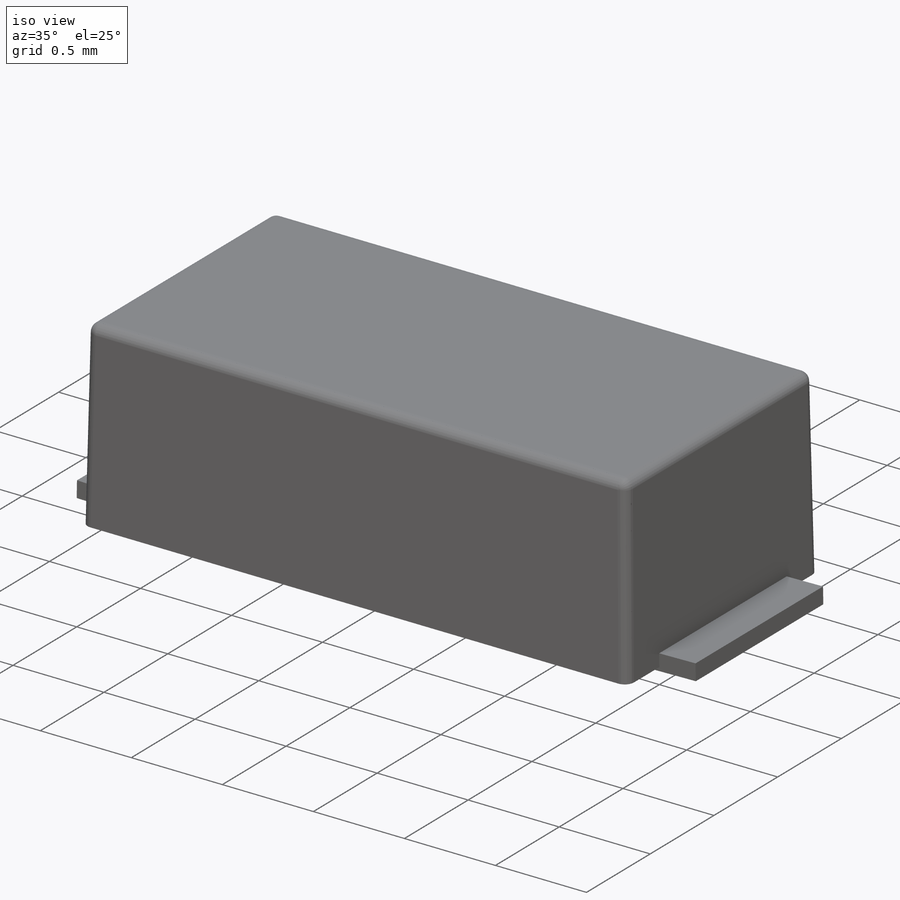
[diagram: iso view]
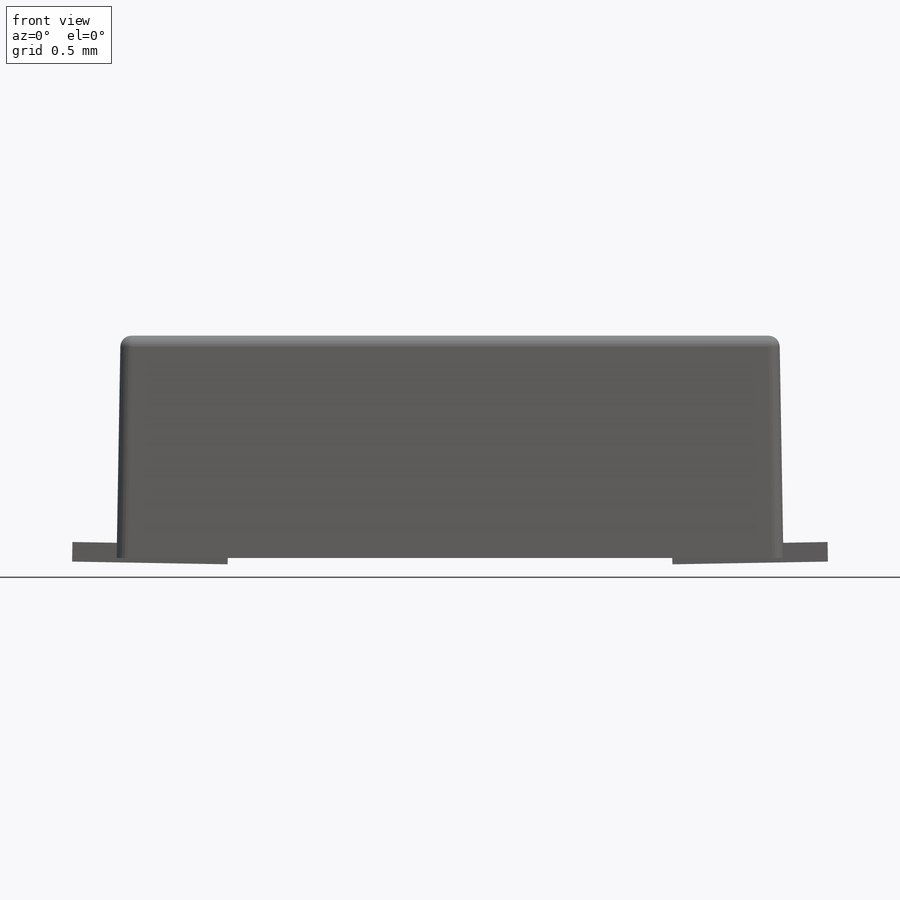
[diagram: front view]
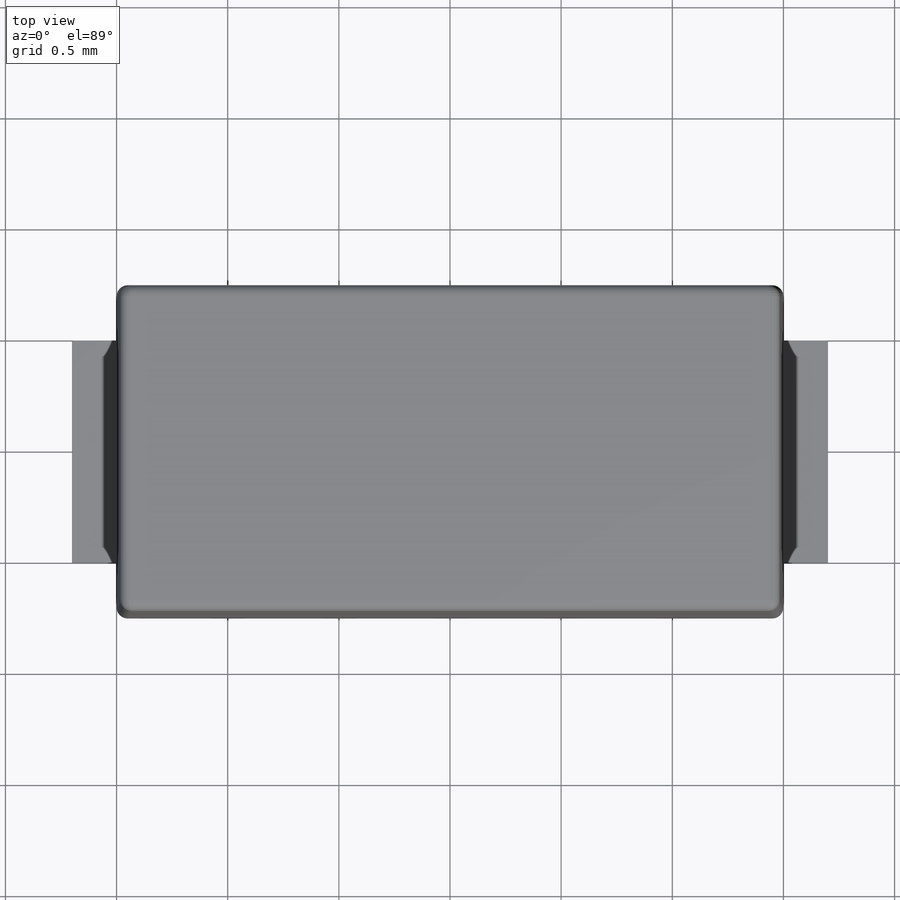
[diagram: top view]
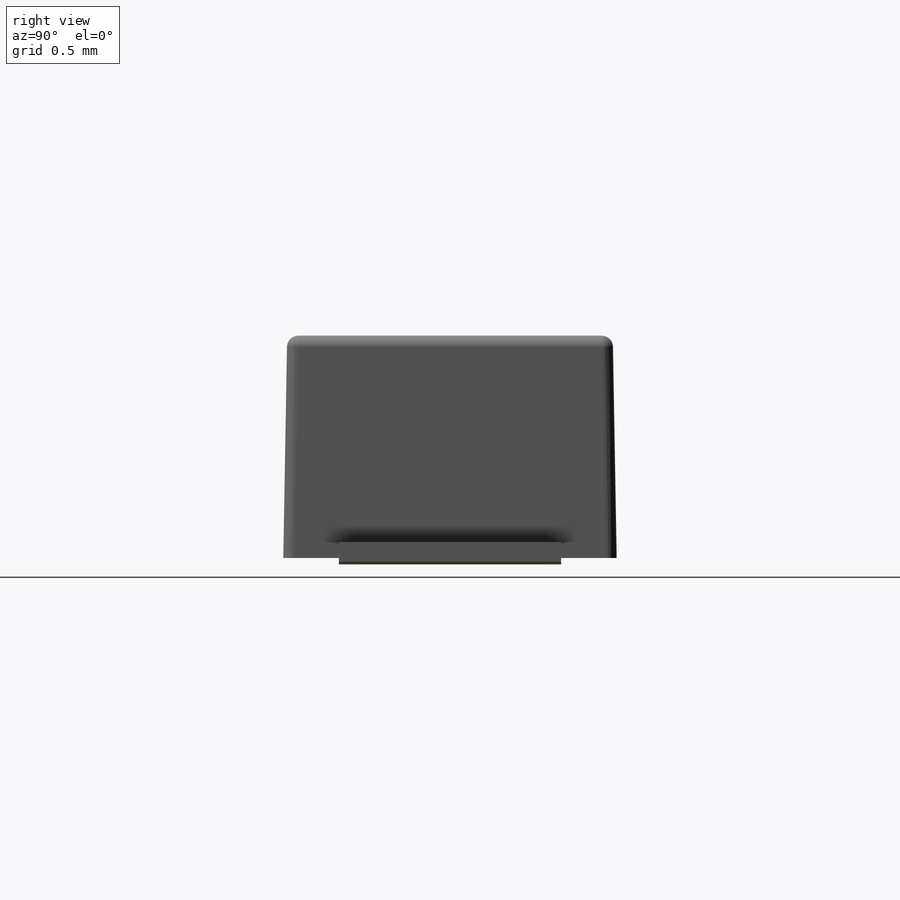
[diagram: right view]
SOLIDWORKS PART (.sldprt)
format: sldprt  version: not decoded by parser v0  size: 169,472 bytes
history: native  units: mm
features: sketch x2, extrude x2, material x1, chamfer x1, fillet x1, mirror x1 (+12 scaffold rows collapsed)
feature tree (20):
  scaffold x12  (default folders/planes/origin — collapsed)
  material  "Material <not specified>"
  sketch  "Sketch1"  dims[D1=3.0mm D2=1.5mm]
  extrude  "Boss-Extrude1"  Depth=1mm
  chamfer  "Chamfer1"  Distance=1mm Angle=1deg
  fillet  "Fillet1"  Radius=0.05mm
  sketch  "Sketch2"  dims[D1=1.0mm D2=0.25mm D3=0.02mm]
  extrude  "Boss-Extrude2"  Depth=0.2mm
  mirror  "Mirror1"
decode coverage: 6 of 7 modeling features carry decoded parameters
note: suppression state not decoded; provenance and decode notes live in map.json
